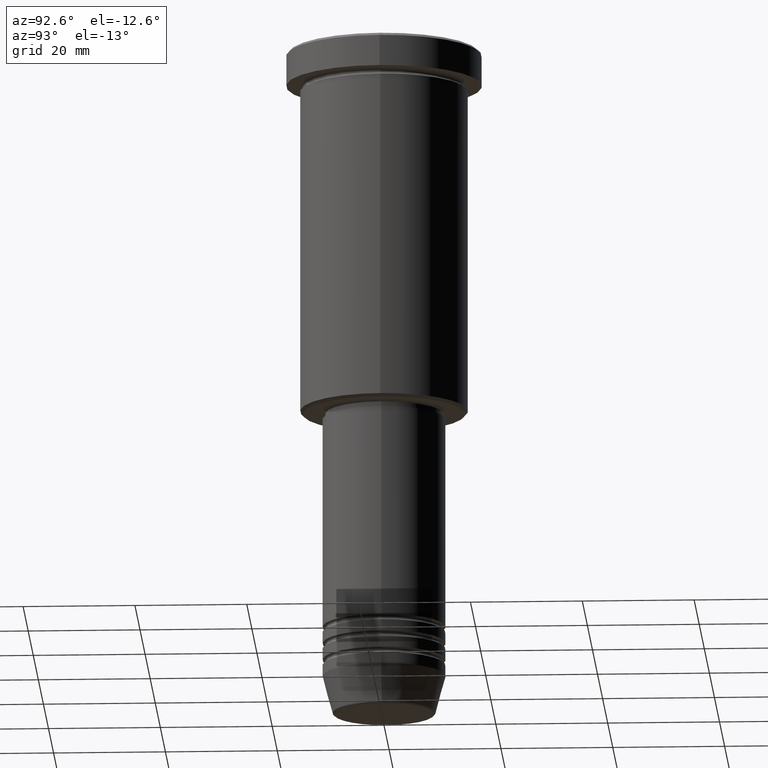
[diagram: clean part render]
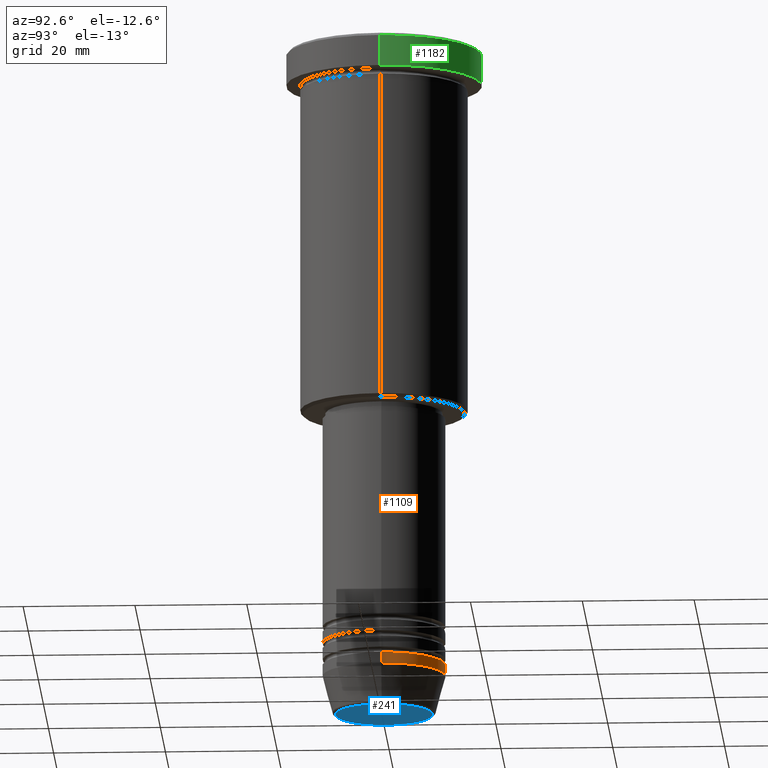
[diagram: same view with three faces highlighted in distinct colors, each labeled with its STEP entity id]
A machine part, auxiliary view with three faces highlighted in distinct colors.
Their STEP definitions:

[orange] entity #1109 — the highlighted cylindrical surface (partial cylindrical patch) has radius 11 mm, axis along (-0, -0, 1).
#17 = VERTEX_POINT ( 'NONE', #1023 ) ;
#48 = DIRECTION ( 'NONE',  ( 1.000000000000000000, 0.000000000000000000, 0.000000000000000000 ) ) ;
#74 = VECTOR ( 'NONE', #259, 1000.000000000000000 ) ;
#98 = CARTESIAN_POINT ( 'NONE',  ( 11.00000000000000000, 0.000000000000000000, -112.0000000000000142 ) ) ;
#141 = VERTEX_POINT ( 'NONE', #98 ) ;
#162 = CARTESIAN_POINT ( 'NONE',  ( 0.000000000000000000, 0.000000000000000000, 0.000000000000000000 ) ) ;
#167 = CIRCLE ( 'NONE', #840, 11.00000000000000000 ) ;
#235 = EDGE_CURVE ( 'NONE', #242, #17, #331, .T. ) ;
#242 = VERTEX_POINT ( 'NONE', #320 ) ;
#259 = DIRECTION ( 'NONE',  ( -0.000000000000000000, -0.000000000000000000, 1.000000000000000000 ) ) ;
#320 = CARTESIAN_POINT ( 'NONE',  ( 11.00000000000000000, 0.000000000000000000, -114.0000000000000142 ) ) ;
#330 = AXIS2_PLACEMENT_3D ( 'NONE', #162, #527, #1162 ) ;
#331 = CIRCLE ( 'NONE', #670, 11.00000000000000000 ) ;
#358 = DIRECTION ( 'NONE',  ( -0.000000000000000000, -0.000000000000000000, 1.000000000000000000 ) ) ;
#415 = CARTESIAN_POINT ( 'NONE',  ( -11.00000000000000000, 1.347111479062088405E-15, -112.0000000000000142 ) ) ;
#453 = DIRECTION ( 'NONE',  ( 1.000000000000000000, 0.000000000000000000, 0.000000000000000000 ) ) ;
#521 = LINE ( 'NONE', #891, #74 ) ;
#524 = LINE ( 'NONE', #709, #950 ) ;
#527 = DIRECTION ( 'NONE',  ( -0.000000000000000000, -0.000000000000000000, 1.000000000000000000 ) ) ;
#557 = EDGE_CURVE ( 'NONE', #141, #976, #167, .T. ) ;
#596 = EDGE_LOOP ( 'NONE', ( #870, #1034, #608, #1058 ) ) ;
#608 = ORIENTED_EDGE ( 'NONE', *, *, #557, .F. ) ;
#620 = CYLINDRICAL_SURFACE ( 'NONE', #330, 11.00000000000000000 ) ;
#651 = DIRECTION ( 'NONE',  ( -0.000000000000000000, -0.000000000000000000, 1.000000000000000000 ) ) ;
#670 = AXIS2_PLACEMENT_3D ( 'NONE', #1086, #651, #453 ) ;
#691 = CARTESIAN_POINT ( 'NONE',  ( 0.000000000000000000, 0.000000000000000000, -112.0000000000000142 ) ) ;
#709 = CARTESIAN_POINT ( 'NONE',  ( -11.00000000000000000, 1.347111479062088405E-15, 0.000000000000000000 ) ) ;
#715 = EDGE_CURVE ( 'NONE', #17, #976, #524, .T. ) ;
#840 = AXIS2_PLACEMENT_3D ( 'NONE', #691, #1050, #48 ) ;
#870 = ORIENTED_EDGE ( 'NONE', *, *, #235, .T. ) ;
#891 = CARTESIAN_POINT ( 'NONE',  ( 11.00000000000000000, 0.000000000000000000, 0.000000000000000000 ) ) ;
#950 = VECTOR ( 'NONE', #358, 1000.000000000000000 ) ;
#976 = VERTEX_POINT ( 'NONE', #415 ) ;
#1023 = CARTESIAN_POINT ( 'NONE',  ( -11.00000000000000000, 1.347111479062088405E-15, -114.0000000000000142 ) ) ;
#1034 = ORIENTED_EDGE ( 'NONE', *, *, #715, .T. ) ;
#1050 = DIRECTION ( 'NONE',  ( -0.000000000000000000, -0.000000000000000000, 1.000000000000000000 ) ) ;
#1058 = ORIENTED_EDGE ( 'NONE', *, *, #1174, .F. ) ;
#1086 = CARTESIAN_POINT ( 'NONE',  ( 0.000000000000000000, 0.000000000000000000, -114.0000000000000142 ) ) ;
#1109 = ADVANCED_FACE ( 'NONE', ( #1156 ), #620, .T. ) ;
#1156 = FACE_OUTER_BOUND ( 'NONE', #596, .T. ) ;
#1162 = DIRECTION ( 'NONE',  ( 1.000000000000000000, 0.000000000000000000, 0.000000000000000000 ) ) ;
#1174 = EDGE_CURVE ( 'NONE', #242, #141, #521, .T. ) ;

[blue] entity #241 — the highlighted planar face has unit normal (0, -0, 1).
#133 = AXIS2_PLACEMENT_3D ( 'NONE', #1158, #417, #779 ) ;
#158 = VERTEX_POINT ( 'NONE', #663 ) ;
#170 = EDGE_LOOP ( 'NONE', ( #768, #916 ) ) ;
#241 = ADVANCED_FACE ( 'NONE', ( #363 ), #1139, .F. ) ;
#250 = AXIS2_PLACEMENT_3D ( 'NONE', #1177, #622, #721 ) ;
#285 = CIRCLE ( 'NONE', #250, 8.740692158992656502 ) ;
#363 = FACE_OUTER_BOUND ( 'NONE', #170, .T. ) ;
#373 = CARTESIAN_POINT ( 'NONE',  ( 0.000000000000000000, 0.000000000000000000, -121.0000000000000142 ) ) ;
#376 = CIRCLE ( 'NONE', #438, 8.740692158992656502 ) ;
#417 = DIRECTION ( 'NONE',  ( 0.000000000000000000, -0.000000000000000000, 1.000000000000000000 ) ) ;
#438 = AXIS2_PLACEMENT_3D ( 'NONE', #373, #957, #595 ) ;
#497 = EDGE_CURVE ( 'NONE', #855, #158, #376, .T. ) ;
#595 = DIRECTION ( 'NONE',  ( 1.000000000000000000, 0.000000000000000000, 0.000000000000000000 ) ) ;
#622 = DIRECTION ( 'NONE',  ( 0.000000000000000000, 0.000000000000000000, -1.000000000000000000 ) ) ;
#663 = CARTESIAN_POINT ( 'NONE',  ( 8.740692158992656502, 0.000000000000000000, -121.0000000000000142 ) ) ;
#684 = EDGE_CURVE ( 'NONE', #158, #855, #285, .T. ) ;
#721 = DIRECTION ( 'NONE',  ( 1.000000000000000000, 0.000000000000000000, 0.000000000000000000 ) ) ;
#768 = ORIENTED_EDGE ( 'NONE', *, *, #684, .T. ) ;
#779 = DIRECTION ( 'NONE',  ( 1.000000000000000000, 0.000000000000000000, 0.000000000000000000 ) ) ;
#855 = VERTEX_POINT ( 'NONE', #923 ) ;
#916 = ORIENTED_EDGE ( 'NONE', *, *, #497, .T. ) ;
#923 = CARTESIAN_POINT ( 'NONE',  ( -8.740692158992656502, 1.099999016768739653E-15, -121.0000000000000142 ) ) ;
#957 = DIRECTION ( 'NONE',  ( 0.000000000000000000, 0.000000000000000000, -1.000000000000000000 ) ) ;
#1139 = PLANE ( 'NONE',  #133 ) ;
#1158 = CARTESIAN_POINT ( 'NONE',  ( 0.000000000000000000, 0.000000000000000000, -121.0000000000000142 ) ) ;
#1177 = CARTESIAN_POINT ( 'NONE',  ( 0.000000000000000000, 0.000000000000000000, -121.0000000000000142 ) ) ;

[green] entity #1182 — the highlighted cylindrical surface (partial cylindrical patch) has radius 17.5 mm, axis along (-0, -0, 1).
#43 = CARTESIAN_POINT ( 'NONE',  ( -17.50000000000000000, 2.143131898507868248E-15, 0.000000000000000000 ) ) ;
#66 = CARTESIAN_POINT ( 'NONE',  ( -17.50000000000000000, 2.143131898507868248E-15, -0.5000000000000143219 ) ) ;
#103 = CARTESIAN_POINT ( 'NONE',  ( 17.50000000000000000, 0.000000000000000000, -0.5000000000000143219 ) ) ;
#129 = LINE ( 'NONE', #43, #348 ) ;
#174 = DIRECTION ( 'NONE',  ( 1.000000000000000000, 0.000000000000000000, 0.000000000000000000 ) ) ;
#175 = EDGE_CURVE ( 'NONE', #180, #853, #659, .T. ) ;
#180 = VERTEX_POINT ( 'NONE', #506 ) ;
#195 = ORIENTED_EDGE ( 'NONE', *, *, #340, .T. ) ;
#262 = FACE_OUTER_BOUND ( 'NONE', #918, .T. ) ;
#264 = VERTEX_POINT ( 'NONE', #326 ) ;
#281 = ORIENTED_EDGE ( 'NONE', *, *, #175, .F. ) ;
#287 = AXIS2_PLACEMENT_3D ( 'NONE', #894, #719, #174 ) ;
#293 = EDGE_CURVE ( 'NONE', #1164, #853, #311, .T. ) ;
#302 = ORIENTED_EDGE ( 'NONE', *, *, #293, .T. ) ;
#311 = CIRCLE ( 'NONE', #771, 17.50000000000000000 ) ;
#326 = CARTESIAN_POINT ( 'NONE',  ( -17.50000000000000000, 2.143131898507868248E-15, -5.999999999999995559 ) ) ;
#340 = EDGE_CURVE ( 'NONE', #264, #1164, #129, .T. ) ;
#348 = VECTOR ( 'NONE', #567, 1000.000000000000000 ) ;
#423 = AXIS2_PLACEMENT_3D ( 'NONE', #442, #425, #1057 ) ;
#425 = DIRECTION ( 'NONE',  ( -0.000000000000000000, -0.000000000000000000, 1.000000000000000000 ) ) ;
#442 = CARTESIAN_POINT ( 'NONE',  ( 0.000000000000000000, 0.000000000000000000, 0.000000000000000000 ) ) ;
#480 = DIRECTION ( 'NONE',  ( 1.000000000000000000, 0.000000000000000000, 0.000000000000000000 ) ) ;
#506 = CARTESIAN_POINT ( 'NONE',  ( 17.50000000000000000, 0.000000000000000000, -5.999999999999995559 ) ) ;
#534 = CARTESIAN_POINT ( 'NONE',  ( 0.000000000000000000, 0.000000000000000000, -0.5000000000000143219 ) ) ;
#567 = DIRECTION ( 'NONE',  ( -0.000000000000000000, -0.000000000000000000, 1.000000000000000000 ) ) ;
#601 = CARTESIAN_POINT ( 'NONE',  ( 17.50000000000000000, 0.000000000000000000, 0.000000000000000000 ) ) ;
#606 = DIRECTION ( 'NONE',  ( -0.000000000000000000, -0.000000000000000000, 1.000000000000000000 ) ) ;
#659 = LINE ( 'NONE', #601, #1166 ) ;
#719 = DIRECTION ( 'NONE',  ( -0.000000000000000000, -0.000000000000000000, 1.000000000000000000 ) ) ;
#722 = DIRECTION ( 'NONE',  ( 0.000000000000000000, 0.000000000000000000, -1.000000000000000000 ) ) ;
#771 = AXIS2_PLACEMENT_3D ( 'NONE', #534, #722, #480 ) ;
#812 = CYLINDRICAL_SURFACE ( 'NONE', #423, 17.50000000000000000 ) ;
#853 = VERTEX_POINT ( 'NONE', #103 ) ;
#894 = CARTESIAN_POINT ( 'NONE',  ( 0.000000000000000000, 0.000000000000000000, -5.999999999999995559 ) ) ;
#918 = EDGE_LOOP ( 'NONE', ( #1077, #195, #302, #281 ) ) ;
#1057 = DIRECTION ( 'NONE',  ( 1.000000000000000000, 0.000000000000000000, 0.000000000000000000 ) ) ;
#1077 = ORIENTED_EDGE ( 'NONE', *, *, #1096, .T. ) ;
#1096 = EDGE_CURVE ( 'NONE', #180, #264, #1165, .T. ) ;
#1164 = VERTEX_POINT ( 'NONE', #66 ) ;
#1165 = CIRCLE ( 'NONE', #287, 17.50000000000000000 ) ;
#1166 = VECTOR ( 'NONE', #606, 1000.000000000000000 ) ;
#1182 = ADVANCED_FACE ( 'NONE', ( #262 ), #812, .T. ) ;